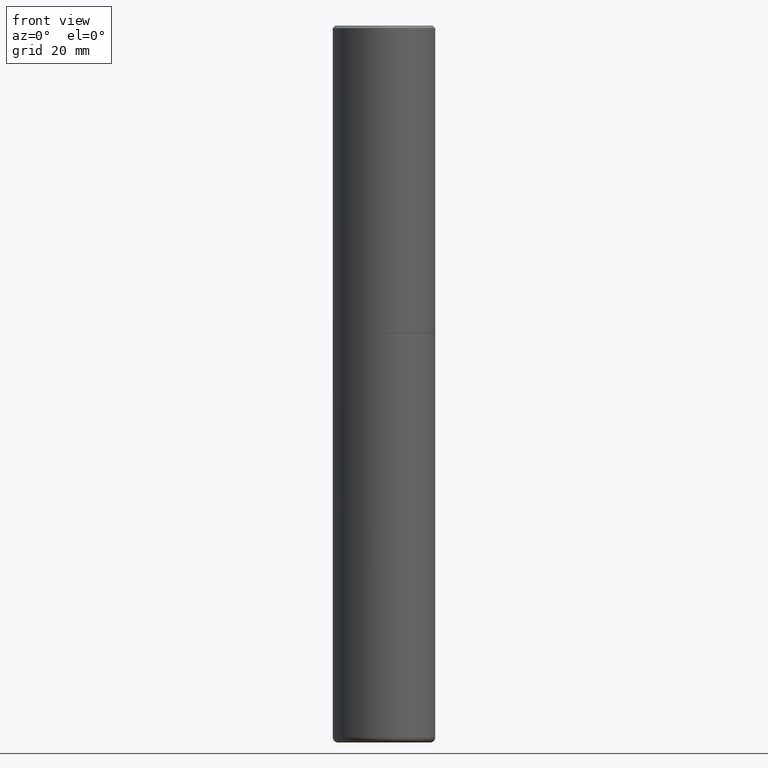
[diagram: clean part render]
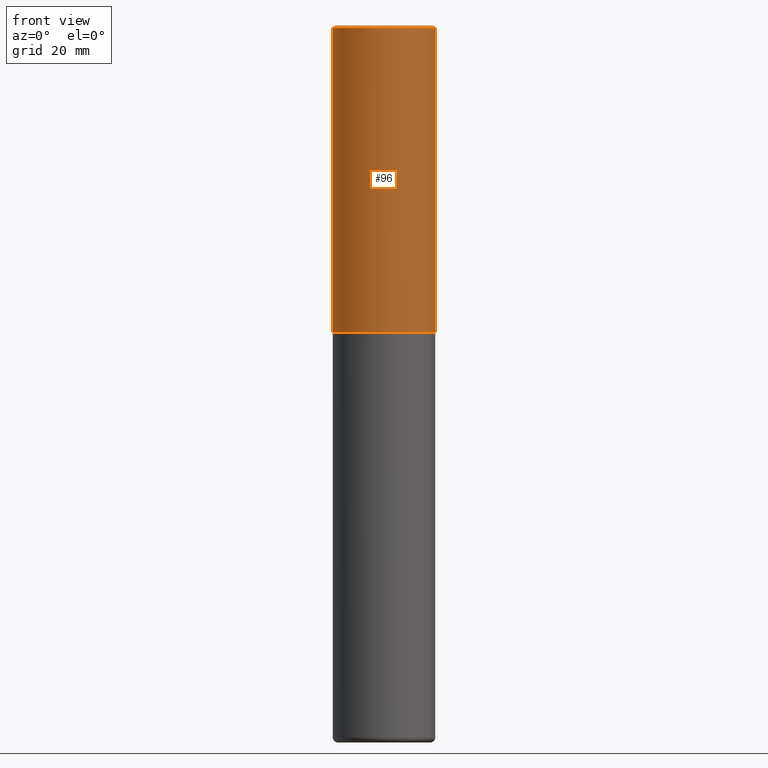
[diagram: same view with one face highlighted and labeled with its STEP entity id]
A machine part, front view. The second image highlights one B-rep face of the part: STEP entity #96.
In plain terms, the highlighted cylindrical surface (partial cylindrical patch) has radius 10 mm, axis along (-0, 0, 1).
Its self-contained STEP definition (entity closure, byte-faithful):
#3 = AXIS2_PLACEMENT_3D ( 'NONE', #111, #217, #334 ) ;
#5 = VECTOR ( 'NONE', #183, 39.37007874015748143 ) ;
#9 = CARTESIAN_POINT ( 'NONE',  ( 5.774240945164344150E-29, -8.244085737276435042E-15, -2.361199999999999743 ) ) ;
#22 = VERTEX_POINT ( 'NONE', #291 ) ;
#34 = CARTESIAN_POINT ( 'NONE',  ( 0.3937000000000000499, -2.770807688499515734E-15, -0.02000000000000008715 ) ) ;
#35 = DIRECTION ( 'NONE',  ( -2.445468806185136877E-29, 3.491481338843145188E-15, 1.000000000000000000 ) ) ;
#46 = CARTESIAN_POINT ( 'NONE',  ( -0.3937000000000001609, 2.797406750687515575E-15, -1.936584745033357296E-29 ) ) ;
#64 = EDGE_CURVE ( 'NONE', #326, #91, #206, .T. ) ;
#72 = EDGE_CURVE ( 'NONE', #103, #22, #305, .T. ) ;
#73 = DIRECTION ( 'NONE',  ( -2.445468806185136597E-29, 3.491481338843145583E-15, 1.000000000000000000 ) ) ;
#91 = VERTEX_POINT ( 'NONE', #34 ) ;
#94 = ORIENTED_EDGE ( 'NONE', *, *, #340, .T. ) ;
#96 = ADVANCED_FACE ( 'NONE', ( #386 ), #141, .T. ) ;
#103 = VERTEX_POINT ( 'NONE', #325 ) ;
#111 = CARTESIAN_POINT ( 'NONE',  ( 4.890937612370294178E-31, -6.982962677686321191E-17, -0.02000000000000008715 ) ) ;
#117 = DIRECTION ( 'NONE',  ( -2.445468806185136597E-29, 3.491481338843145583E-15, 1.000000000000000000 ) ) ;
#123 = AXIS2_PLACEMENT_3D ( 'NONE', #9, #117, #130 ) ;
#126 = EDGE_LOOP ( 'NONE', ( #358, #261, #94, #320 ) ) ;
#130 = DIRECTION ( 'NONE',  ( 1.000000000000000000, -6.982962677686265922E-15, 0.000000000000000000 ) ) ;
#141 = CYLINDRICAL_SURFACE ( 'NONE', #241, 0.3937000000000001609 ) ;
#183 = DIRECTION ( 'NONE',  ( -2.445468806185136877E-29, 3.491481338843145188E-15, 1.000000000000000000 ) ) ;
#201 = VECTOR ( 'NONE', #35, 39.37007874015748143 ) ;
#206 = CIRCLE ( 'NONE', #3, 0.3937000000000000499 ) ;
#217 = DIRECTION ( 'NONE',  ( -2.445468806185136597E-29, 3.491481338843145583E-15, 1.000000000000000000 ) ) ;
#220 = LINE ( 'NONE', #46, #5 ) ;
#241 = AXIS2_PLACEMENT_3D ( 'NONE', #388, #73, #298 ) ;
#261 = ORIENTED_EDGE ( 'NONE', *, *, #72, .T. ) ;
#291 = CARTESIAN_POINT ( 'NONE',  ( 0.3937000000000002720, -1.099327814348151984E-14, -2.361199999999999743 ) ) ;
#298 = DIRECTION ( 'NONE',  ( 1.000000000000000000, -6.982962677686266711E-15, 4.876176775795935793E-29 ) ) ;
#300 = LINE ( 'NONE', #354, #201 ) ;
#305 = CIRCLE ( 'NONE', #123, 0.3937000000000002720 ) ;
#315 = EDGE_CURVE ( 'NONE', #103, #326, #220, .T. ) ;
#320 = ORIENTED_EDGE ( 'NONE', *, *, #64, .F. ) ;
#325 = CARTESIAN_POINT ( 'NONE',  ( -0.3937000000000003830, -1.359550931339130834E-15, -2.361199999999999743 ) ) ;
#326 = VERTEX_POINT ( 'NONE', #396 ) ;
#334 = DIRECTION ( 'NONE',  ( 1.000000000000000000, -6.982962677686265922E-15, 0.000000000000000000 ) ) ;
#340 = EDGE_CURVE ( 'NONE', #22, #91, #300, .T. ) ;
#354 = CARTESIAN_POINT ( 'NONE',  ( 0.3937000000000001609, -2.749192406205084400E-15, 1.919750796630860732E-29 ) ) ;
#358 = ORIENTED_EDGE ( 'NONE', *, *, #315, .F. ) ;
#386 = FACE_OUTER_BOUND ( 'NONE', #126, .T. ) ;
#388 = CARTESIAN_POINT ( 'NONE',  ( 0.000000000000000000, 0.000000000000000000, 0.000000000000000000 ) ) ;
#396 = CARTESIAN_POINT ( 'NONE',  ( -0.3937000000000000499, 2.679362779428219918E-15, -0.02000000000000008715 ) ) ;